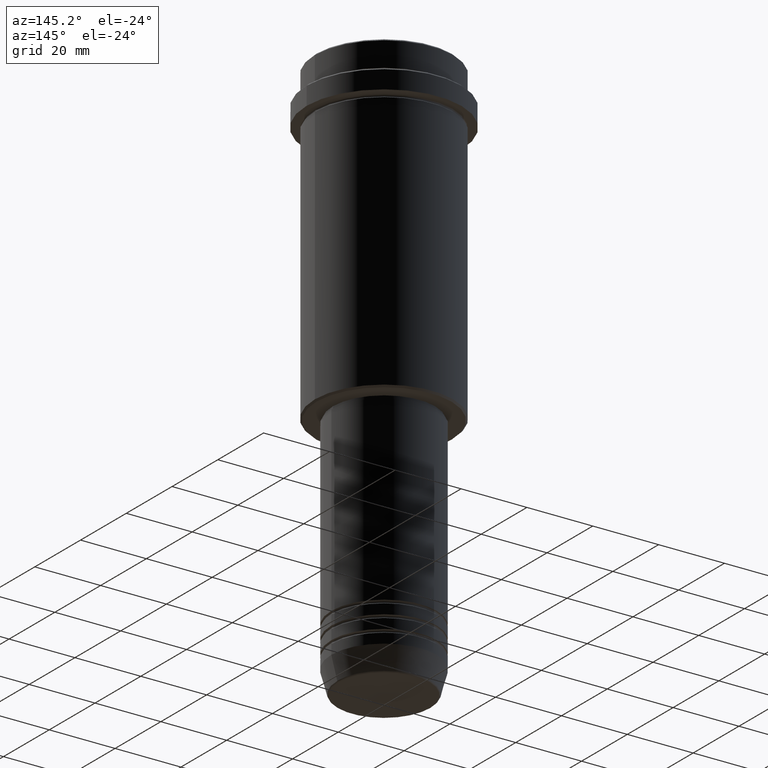
[diagram: clean part render]
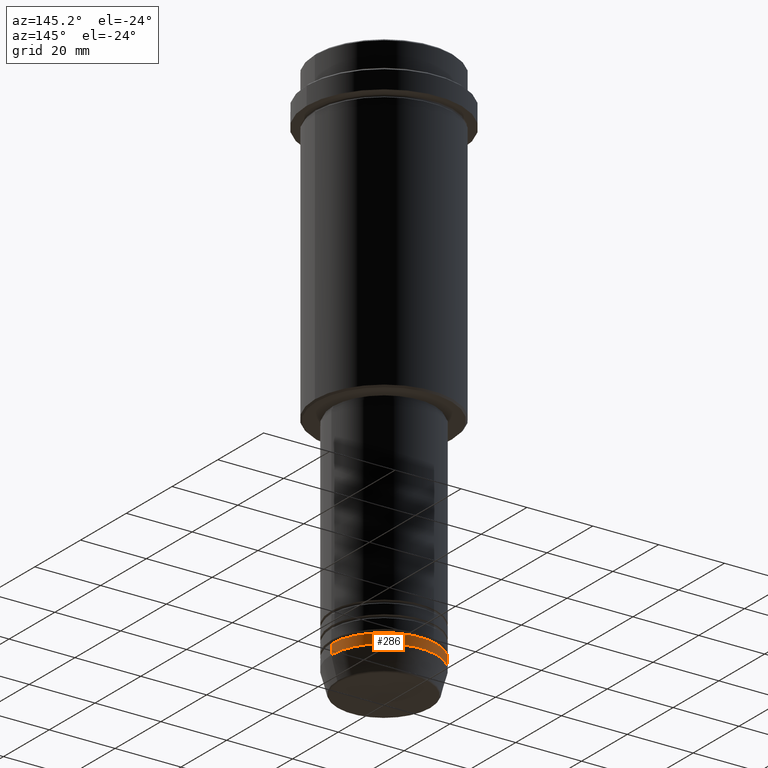
[diagram: same view with one face highlighted and labeled with its STEP entity id]
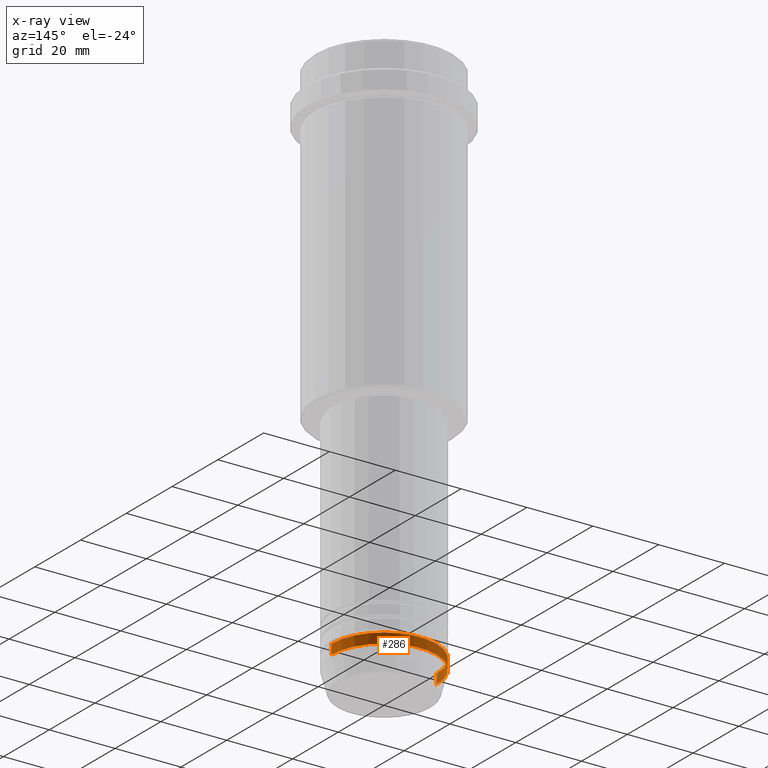
[diagram: x-ray of the same camera — body ghosted, the highlighted face saturated]
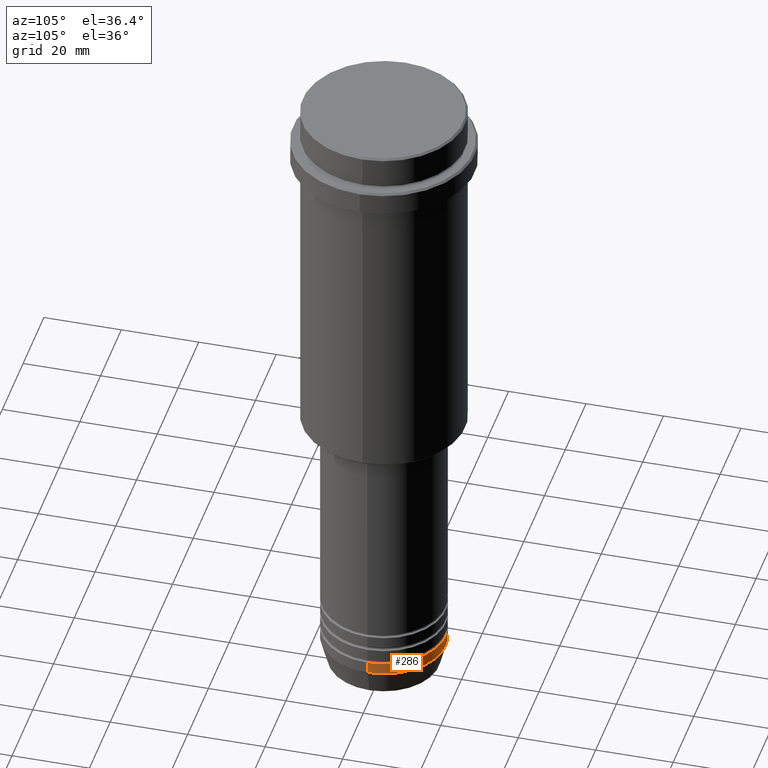
[diagram: same view with one face highlighted and labeled with its STEP entity id]
A machine part, auxiliary view. The second image highlights one B-rep face of the part: STEP entity #286.
The next image is the same camera in x-ray: the body ghosted, the highlighted face saturated — about 0% of this face is hidden behind the body in this view.
A second angle (auxiliary view) of the same face is appended — the face is thin or edge-on in the first view.
In plain terms, the highlighted cylindrical surface (partial cylindrical patch) has radius 16 mm, axis along (-0, -0, 1).
Its self-contained STEP definition (entity closure, byte-faithful):
#65 = CIRCLE ( 'NONE', #708, 16.00000000000000000 ) ;
#165 = DIRECTION ( 'NONE',  ( -0.000000000000000000, -0.000000000000000000, 1.000000000000000000 ) ) ;
#177 = DIRECTION ( 'NONE',  ( -0.000000000000000000, -0.000000000000000000, 1.000000000000000000 ) ) ;
#221 = DIRECTION ( 'NONE',  ( 1.000000000000000000, 0.000000000000000000, 0.000000000000000000 ) ) ;
#246 = AXIS2_PLACEMENT_3D ( 'NONE', #1201, #328, #221 ) ;
#254 = CARTESIAN_POINT ( 'NONE',  ( -16.00000000000000000, 1.959434878635765131E-15, -163.0000000000000000 ) ) ;
#273 = EDGE_LOOP ( 'NONE', ( #1228, #1402, #433, #1317 ) ) ;
#286 = ADVANCED_FACE ( 'NONE', ( #882 ), #765, .T. ) ;
#328 = DIRECTION ( 'NONE',  ( -0.000000000000000000, -0.000000000000000000, 1.000000000000000000 ) ) ;
#371 = CARTESIAN_POINT ( 'NONE',  ( 0.000000000000000000, 0.000000000000000000, -160.0000000000000000 ) ) ;
#412 = CARTESIAN_POINT ( 'NONE',  ( -16.00000000000000000, 1.959434878635765131E-15, 0.000000000000000000 ) ) ;
#433 = ORIENTED_EDGE ( 'NONE', *, *, #1155, .F. ) ;
#445 = VERTEX_POINT ( 'NONE', #994 ) ;
#670 = VERTEX_POINT ( 'NONE', #1289 ) ;
#701 = DIRECTION ( 'NONE',  ( -0.000000000000000000, -0.000000000000000000, 1.000000000000000000 ) ) ;
#704 = CARTESIAN_POINT ( 'NONE',  ( -16.00000000000000000, 1.959434878635765131E-15, -160.0000000000000000 ) ) ;
#708 = AXIS2_PLACEMENT_3D ( 'NONE', #1131, #701, #1003 ) ;
#765 = CYLINDRICAL_SURFACE ( 'NONE', #246, 16.00000000000000000 ) ;
#824 = VECTOR ( 'NONE', #177, 1000.000000000000000 ) ;
#859 = EDGE_CURVE ( 'NONE', #670, #1089, #65, .T. ) ;
#882 = FACE_OUTER_BOUND ( 'NONE', #273, .T. ) ;
#920 = DIRECTION ( 'NONE',  ( -0.000000000000000000, -0.000000000000000000, 1.000000000000000000 ) ) ;
#927 = CARTESIAN_POINT ( 'NONE',  ( 16.00000000000000000, 0.000000000000000000, 0.000000000000000000 ) ) ;
#953 = EDGE_CURVE ( 'NONE', #670, #445, #1150, .T. ) ;
#974 = VECTOR ( 'NONE', #165, 1000.000000000000000 ) ;
#994 = CARTESIAN_POINT ( 'NONE',  ( 16.00000000000000000, 0.000000000000000000, -160.0000000000000000 ) ) ;
#1003 = DIRECTION ( 'NONE',  ( 1.000000000000000000, 0.000000000000000000, 0.000000000000000000 ) ) ;
#1089 = VERTEX_POINT ( 'NONE', #254 ) ;
#1131 = CARTESIAN_POINT ( 'NONE',  ( 0.000000000000000000, 0.000000000000000000, -163.0000000000000000 ) ) ;
#1150 = LINE ( 'NONE', #927, #974 ) ;
#1151 = VERTEX_POINT ( 'NONE', #704 ) ;
#1155 = EDGE_CURVE ( 'NONE', #445, #1151, #1207, .T. ) ;
#1201 = CARTESIAN_POINT ( 'NONE',  ( 0.000000000000000000, 0.000000000000000000, 0.000000000000000000 ) ) ;
#1207 = CIRCLE ( 'NONE', #1278, 16.00000000000000000 ) ;
#1228 = ORIENTED_EDGE ( 'NONE', *, *, #859, .T. ) ;
#1278 = AXIS2_PLACEMENT_3D ( 'NONE', #371, #920, #1357 ) ;
#1289 = CARTESIAN_POINT ( 'NONE',  ( 16.00000000000000000, 0.000000000000000000, -163.0000000000000000 ) ) ;
#1294 = EDGE_CURVE ( 'NONE', #1089, #1151, #1390, .T. ) ;
#1317 = ORIENTED_EDGE ( 'NONE', *, *, #953, .F. ) ;
#1357 = DIRECTION ( 'NONE',  ( 1.000000000000000000, 0.000000000000000000, 0.000000000000000000 ) ) ;
#1390 = LINE ( 'NONE', #412, #824 ) ;
#1402 = ORIENTED_EDGE ( 'NONE', *, *, #1294, .T. ) ;